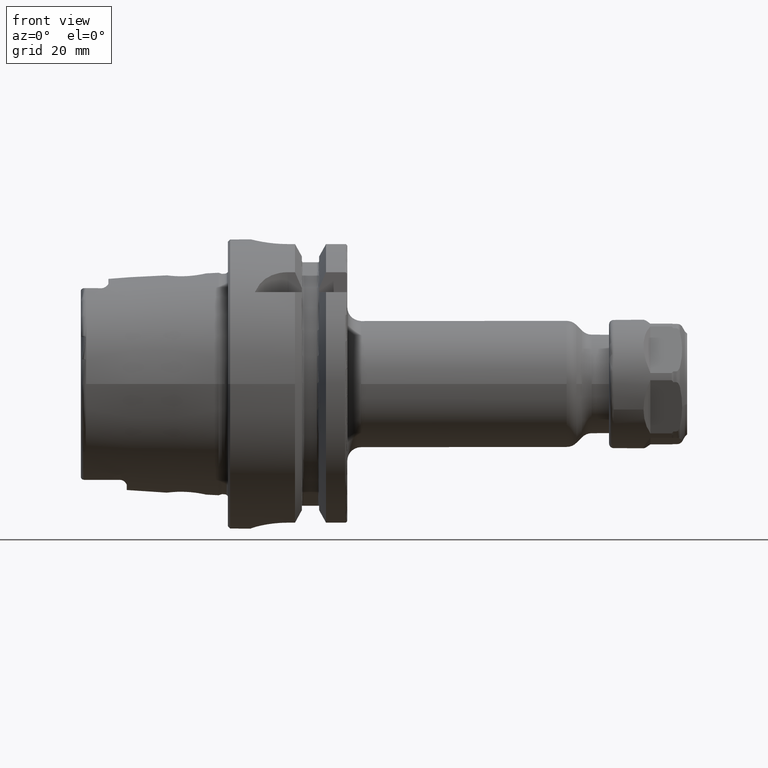
[diagram: clean part render]
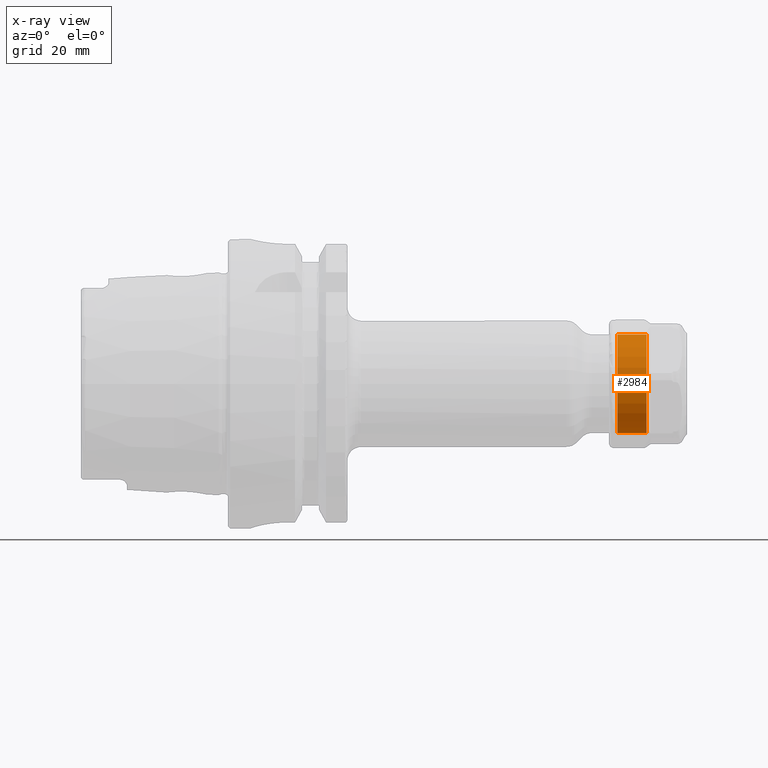
[diagram: x-ray — body ghosted, one internal face saturated and labeled with its STEP entity id]
A machine part, front view, then the same camera in x-ray: the body is ghosted and one INTERNAL B-rep face — a face not visible from any outside direction — is saturated and labeled: STEP entity #2984.
In plain terms, the highlighted cylindrical surface (bore or boss wall) has radius 10.75 mm, axis along (-1, 0, 0).
Its self-contained STEP definition (entity closure, byte-faithful):
#288=CYLINDRICAL_SURFACE('',#3367,10.75);
#422=FACE_OUTER_BOUND('',#604,.T.);
#604=EDGE_LOOP('',(#2567,#2568,#2569,#2570,#2571,#2572));
#768=LINE('',#5884,#921);
#921=VECTOR('',#4129,10.75);
#1102=CIRCLE('',#3368,10.75);
#1103=CIRCLE('',#3369,10.75);
#1104=CIRCLE('',#3370,10.75);
#1105=CIRCLE('',#3371,10.75);
#1365=VERTEX_POINT('',#5880);
#1366=VERTEX_POINT('',#5881);
#1367=VERTEX_POINT('',#5883);
#1368=VERTEX_POINT('',#5885);
#1779=EDGE_CURVE('',#1365,#1366,#1102,.T.);
#1780=EDGE_CURVE('',#1365,#1367,#768,.T.);
#1781=EDGE_CURVE('',#1368,#1367,#1103,.T.);
#1782=EDGE_CURVE('',#1367,#1368,#1104,.T.);
#1783=EDGE_CURVE('',#1366,#1365,#1105,.T.);
#2567=ORIENTED_EDGE('',*,*,#1779,.F.);
#2568=ORIENTED_EDGE('',*,*,#1780,.T.);
#2569=ORIENTED_EDGE('',*,*,#1781,.F.);
#2570=ORIENTED_EDGE('',*,*,#1782,.F.);
#2571=ORIENTED_EDGE('',*,*,#1780,.F.);
#2572=ORIENTED_EDGE('',*,*,#1783,.F.);
#2984=ADVANCED_FACE('',(#422),#288,.F.);
#3367=AXIS2_PLACEMENT_3D('',#5879,#4125,#4126);
#3368=AXIS2_PLACEMENT_3D('',#5882,#4127,#4128);
#3369=AXIS2_PLACEMENT_3D('',#5886,#4130,#4131);
#3370=AXIS2_PLACEMENT_3D('',#5887,#4132,#4133);
#3371=AXIS2_PLACEMENT_3D('',#5888,#4134,#4135);
#4125=DIRECTION('center_axis',(-1.,4.17966315153006E-15,0.));
#4126=DIRECTION('ref_axis',(0.,0.,1.));
#4127=DIRECTION('center_axis',(1.,-4.17966315153006E-15,0.));
#4128=DIRECTION('ref_axis',(0.,0.,1.));
#4129=DIRECTION('',(1.,-4.17966315153006E-15,0.));
#4130=DIRECTION('center_axis',(-1.,4.17966315153006E-15,0.));
#4131=DIRECTION('ref_axis',(0.,0.,1.));
#4132=DIRECTION('center_axis',(-1.,4.17966315153006E-15,0.));
#4133=DIRECTION('ref_axis',(0.,0.,1.));
#4134=DIRECTION('center_axis',(1.,-4.17966315153006E-15,0.));
#4135=DIRECTION('ref_axis',(0.,0.,1.));
#5879=CARTESIAN_POINT('Origin',(-12.7500000000001,5.32907051820087E-14,
0.));
#5880=CARTESIAN_POINT('',(-15.1535898384864,6.46533963704054E-14,-10.75));
#5881=CARTESIAN_POINT('',(-15.1535898384864,-10.7499999999999,-1.3164953090834E-15));
#5882=CARTESIAN_POINT('Origin',(-15.1535898384864,6.3336901061322E-14,0.));
#5883=CARTESIAN_POINT('',(-8.84641016151376,3.56585192663168E-14,-10.75));
#5884=CARTESIAN_POINT('',(-12.7500000000001,5.19742098729253E-14,-10.75));
#5885=CARTESIAN_POINT('',(-8.84641016151381,-10.75,-1.3164953090834E-15));
#5886=CARTESIAN_POINT('Origin',(-8.84641016151376,3.69750145754002E-14,
0.));
#5887=CARTESIAN_POINT('Origin',(-8.84641016151376,3.69750145754002E-14,
0.));
#5888=CARTESIAN_POINT('Origin',(-15.1535898384864,6.3336901061322E-14,0.));